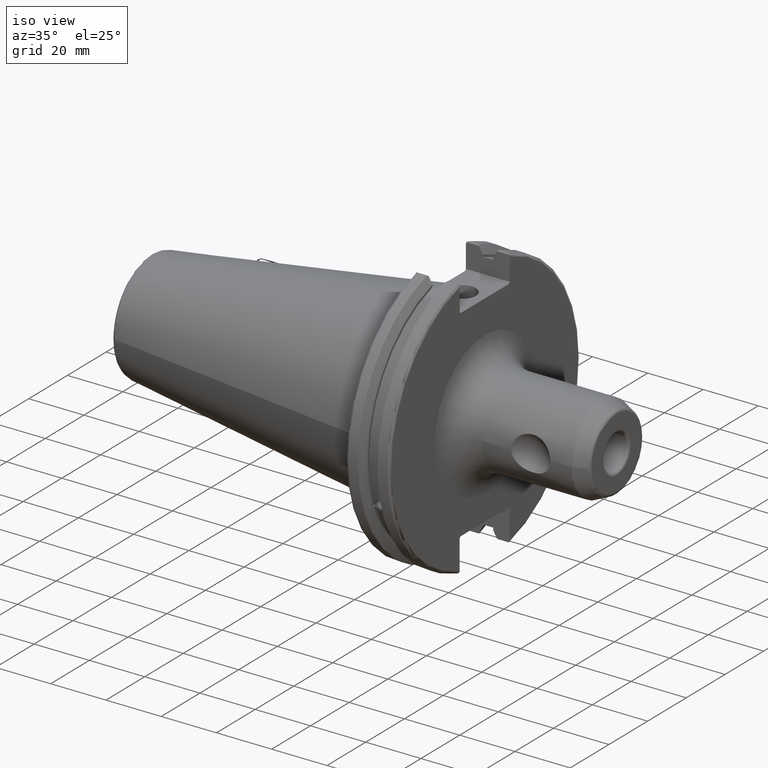
[diagram: clean part render]
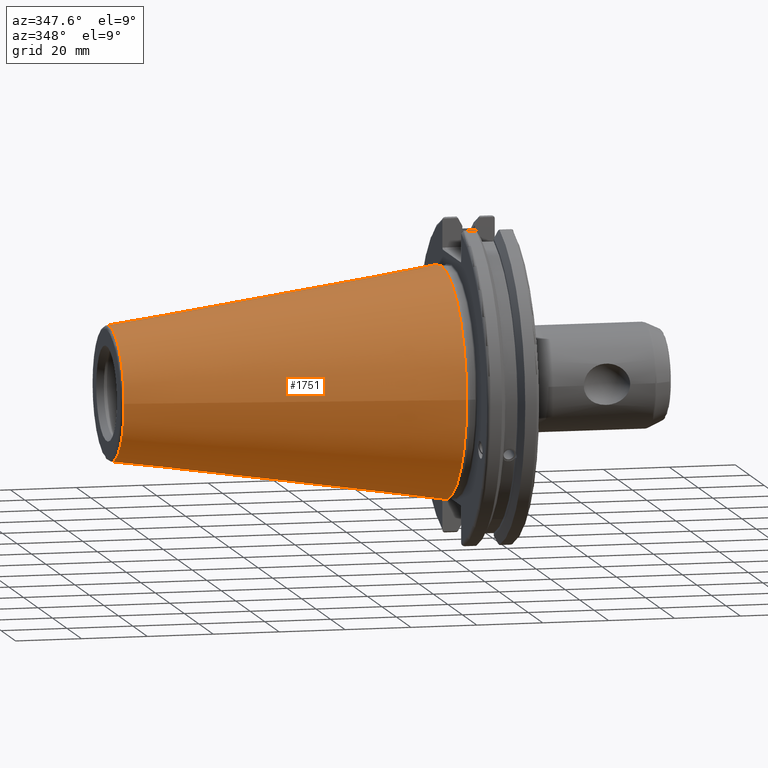
[diagram: tour spotlight — one face highlighted and labeled with its STEP entity id]
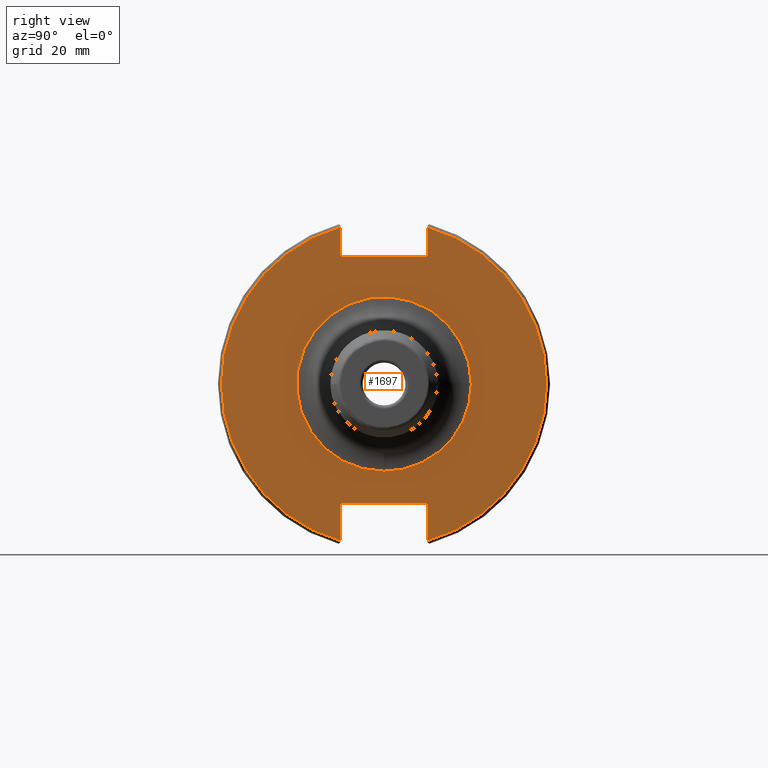
[diagram: tour spotlight — one face highlighted and labeled with its STEP entity id]
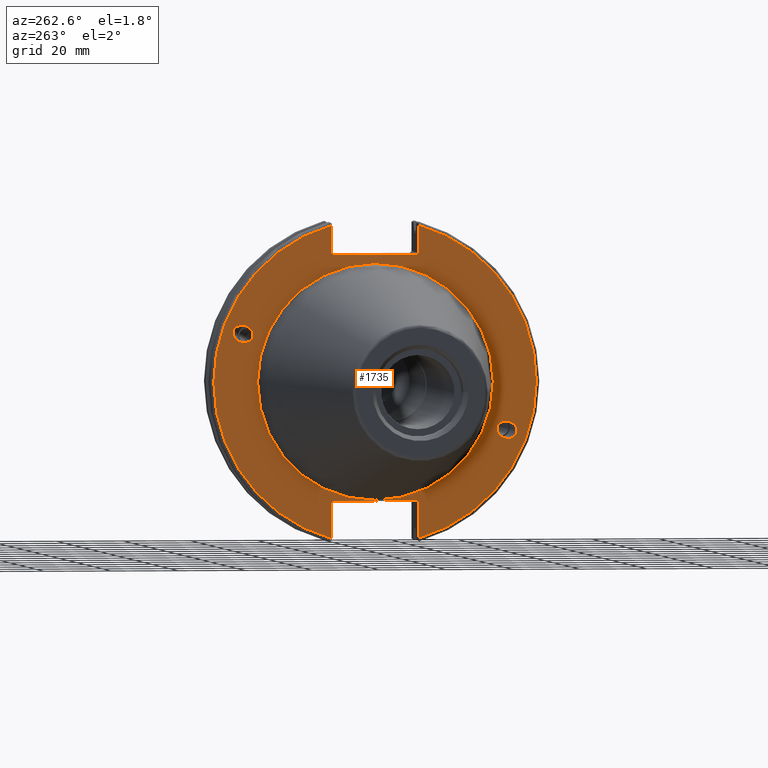
[diagram: tour spotlight — one face highlighted and labeled with its STEP entity id]
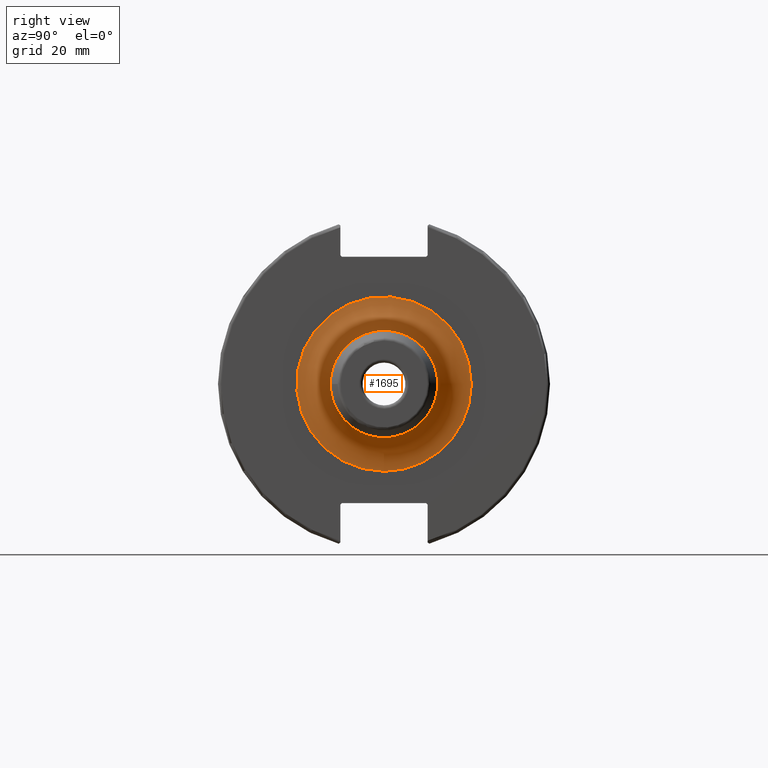
[diagram: tour spotlight — one face highlighted and labeled with its STEP entity id]
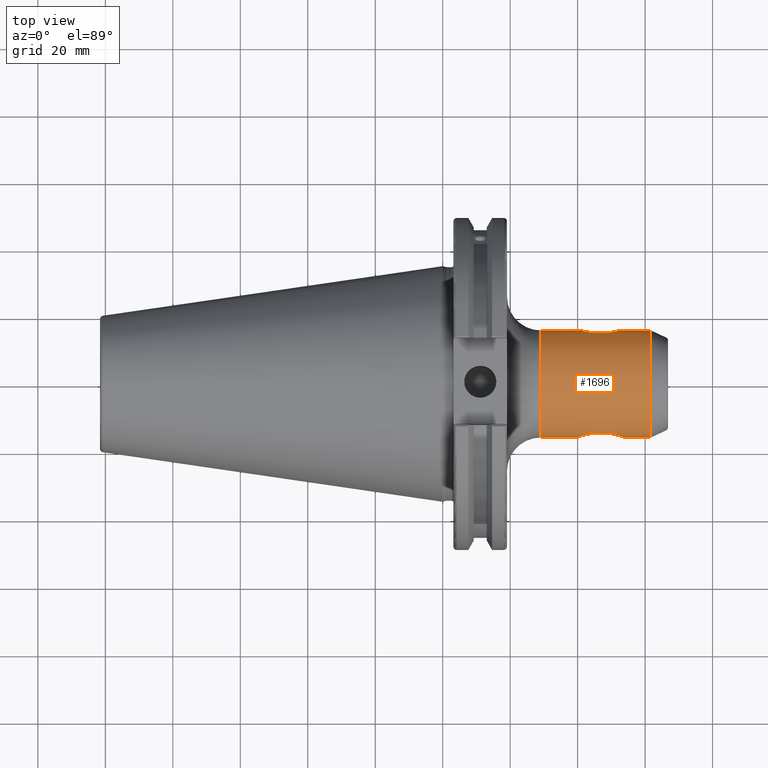
[diagram: tour spotlight — one face highlighted and labeled with its STEP entity id]
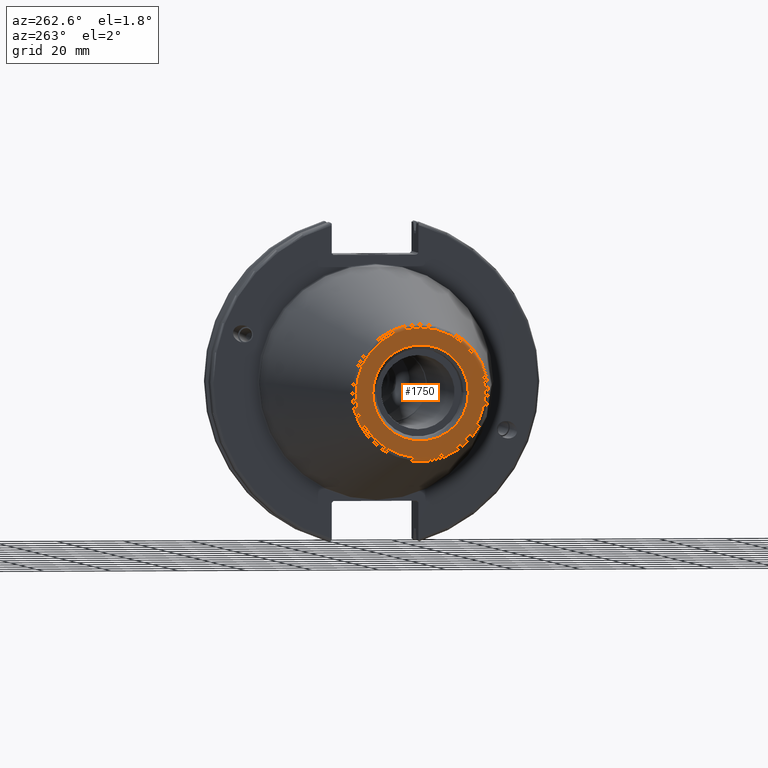
[diagram: tour spotlight — one face highlighted and labeled with its STEP entity id]
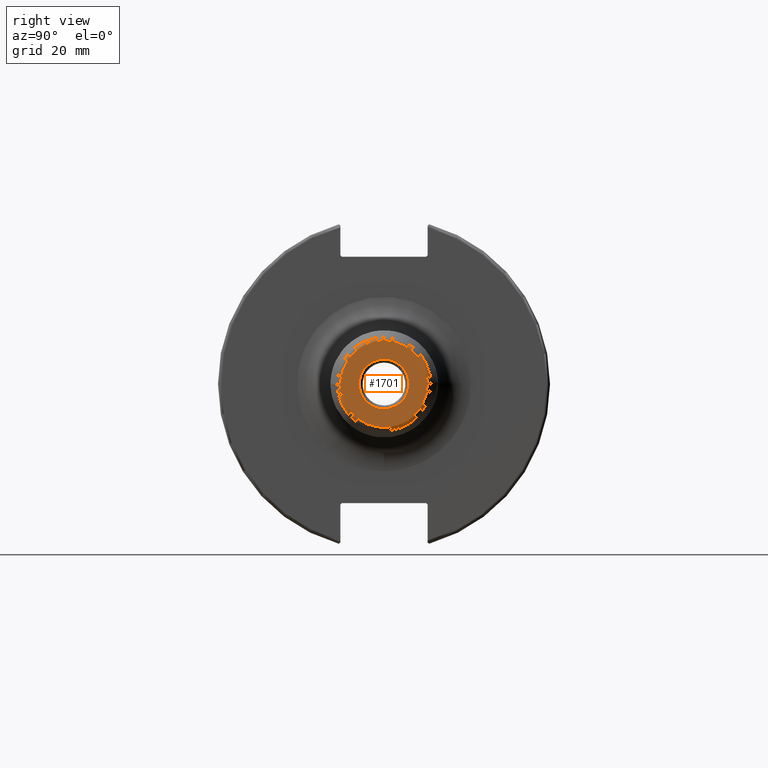
[diagram: tour spotlight — one face highlighted and labeled with its STEP entity id]
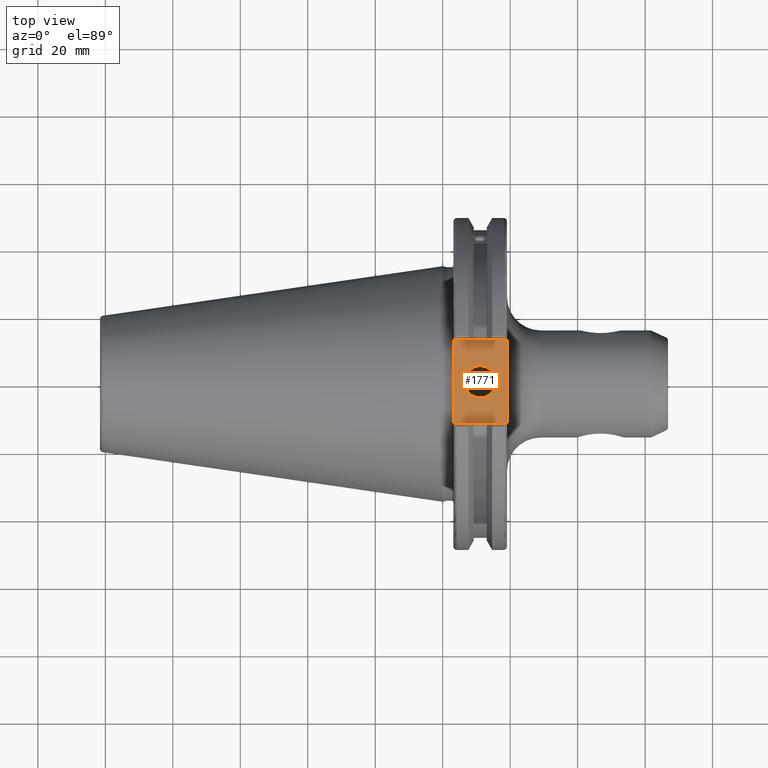
[diagram: tour spotlight — one face highlighted and labeled with its STEP entity id]
A machine part: a face-by-face anatomy tour. The part has 89 B-rep faces; the first image is the clean iso view, then the 8 largest visible faces are spotlighted one at a time (largest first), each with its STEP entity span.

Face 1 — auxiliary view, entity #1751. In plain terms, the highlighted conical surface has half-angle 8.297 deg.
Definition (entity closure, byte-faithful):
#109=CONICAL_SURFACE('',#1957,27.5166666666666,0.14481249823894);
#190=LINE('',#3566,#285);
#285=VECTOR('',#2400,27.5166666666666);
#392=CIRCLE('',#1948,20.233121911427);
#393=CIRCLE('',#1949,20.233121911427);
#397=CIRCLE('',#1953,20.233121911427);
#400=CIRCLE('',#1958,34.925);
#401=CIRCLE('',#1959,34.925);
#504=FACE_OUTER_BOUND('',#612,.T.);
#612=EDGE_LOOP('',(#1545,#1546,#1547,#1548,#1549,#1550,#1551));
#857=VERTEX_POINT('',#3545);
#858=VERTEX_POINT('',#3546);
#859=VERTEX_POINT('',#3548);
#864=VERTEX_POINT('',#3562);
#865=VERTEX_POINT('',#3563);
#1103=EDGE_CURVE('',#857,#858,#392,.T.);
#1104=EDGE_CURVE('',#858,#859,#393,.T.);
#1108=EDGE_CURVE('',#859,#857,#397,.T.);
#1111=EDGE_CURVE('',#864,#865,#400,.T.);
#1112=EDGE_CURVE('',#865,#864,#401,.T.);
#1113=EDGE_CURVE('',#865,#858,#190,.T.);
#1545=ORIENTED_EDGE('',*,*,#1111,.F.);
#1546=ORIENTED_EDGE('',*,*,#1112,.F.);
#1547=ORIENTED_EDGE('',*,*,#1113,.T.);
#1548=ORIENTED_EDGE('',*,*,#1103,.F.);
#1549=ORIENTED_EDGE('',*,*,#1108,.F.);
#1550=ORIENTED_EDGE('',*,*,#1104,.F.);
#1551=ORIENTED_EDGE('',*,*,#1113,.F.);
#1751=ADVANCED_FACE('',(#504),#109,.T.);
#1948=AXIS2_PLACEMENT_3D('',#3547,#2376,#2377);
#1949=AXIS2_PLACEMENT_3D('',#3549,#2378,#2379);
#1953=AXIS2_PLACEMENT_3D('',#3555,#2386,#2387);
#1957=AXIS2_PLACEMENT_3D('',#3561,#2394,#2395);
#1958=AXIS2_PLACEMENT_3D('',#3564,#2396,#2397);
#1959=AXIS2_PLACEMENT_3D('',#3565,#2398,#2399);
#2376=DIRECTION('center_axis',(-1.,0.,0.));
#2377=DIRECTION('ref_axis',(0.,-1.,3.06161699786838E-17));
#2378=DIRECTION('center_axis',(-1.,0.,0.));
#2379=DIRECTION('ref_axis',(0.,-1.,3.06161699786838E-17));
#2386=DIRECTION('center_axis',(-1.,0.,0.));
#2387=DIRECTION('ref_axis',(0.,-1.,3.06161699786838E-17));
#2394=DIRECTION('center_axis',(1.,0.,0.));
#2395=DIRECTION('ref_axis',(0.,1.,0.));
#2396=DIRECTION('center_axis',(1.,0.,0.));
#2397=DIRECTION('ref_axis',(0.,0.,-1.));
#2398=DIRECTION('center_axis',(1.,0.,0.));
#2399=DIRECTION('ref_axis',(0.,0.,-1.));
#2400=DIRECTION('',(-0.989532981063281,0.144306893071729,1.76724974695192E-17));
#3545=CARTESIAN_POINT('',(-100.744306893072,20.233121911427,-6.19460699639681E-15));
#3546=CARTESIAN_POINT('',(-100.744306893072,-20.233121911427,-2.47784279855872E-15));
#3547=CARTESIAN_POINT('Origin',(-100.744306893072,0.,-3.09730349819841E-15));
#3548=CARTESIAN_POINT('',(-100.744306893072,-2.47784279855872E-15,20.233121911427));
#3549=CARTESIAN_POINT('Origin',(-100.744306893072,0.,-3.09730349819841E-15));
#3555=CARTESIAN_POINT('Origin',(-100.744306893072,0.,-3.09730349819841E-15));
#3561=CARTESIAN_POINT('Origin',(-50.8,0.,0.));
#3562=CARTESIAN_POINT('',(0.,34.925,0.));
#3563=CARTESIAN_POINT('',(-8.88178419700125E-15,-34.925,-4.27707894602213E-15));
#3564=CARTESIAN_POINT('Origin',(0.,0.,0.));
#3565=CARTESIAN_POINT('Origin',(0.,0.,0.));
#3566=CARTESIAN_POINT('',(-50.8,-27.5166666666666,-3.3698197756538E-15));

Face 2 — right view, entity #1697. In plain terms, the highlighted planar face has unit normal (1, 0, 0).
Definition (entity closure, byte-faithful):
#45=FACE_BOUND('',#542,.T.);
#65=PLANE('',#1819);
#119=LINE('',#2680,#214);
#120=LINE('',#2682,#215);
#121=LINE('',#2684,#216);
#122=LINE('',#2686,#217);
#123=LINE('',#2688,#218);
#124=LINE('',#2692,#219);
#125=LINE('',#2694,#220);
#126=LINE('',#2696,#221);
#127=LINE('',#2698,#222);
#128=LINE('',#2699,#223);
#214=VECTOR('',#2051,10.);
#215=VECTOR('',#2052,10.);
#216=VECTOR('',#2053,10.);
#217=VECTOR('',#2054,10.);
#218=VECTOR('',#2055,10.);
#219=VECTOR('',#2058,10.);
#220=VECTOR('',#2059,10.);
#221=VECTOR('',#2060,10.);
#222=VECTOR('',#2061,10.);
#223=VECTOR('',#2062,10.);
#311=CIRCLE('',#1811,25.875);
#312=CIRCLE('',#1812,25.875);
#318=CIRCLE('',#1820,48.2125);
#319=CIRCLE('',#1821,48.2125);
#450=FACE_OUTER_BOUND('',#541,.T.);
#541=EDGE_LOOP('',(#1191,#1192,#1193,#1194,#1195,#1196,#1197,#1198,#1199,
#1200,#1201,#1202));
#542=EDGE_LOOP('',(#1203,#1204));
#701=VERTEX_POINT('',#2658);
#702=VERTEX_POINT('',#2660);
#707=VERTEX_POINT('',#2676);
#708=VERTEX_POINT('',#2677);
#709=VERTEX_POINT('',#2679);
#710=VERTEX_POINT('',#2681);
#711=VERTEX_POINT('',#2683);
#712=VERTEX_POINT('',#2685);
#713=VERTEX_POINT('',#2687);
#714=VERTEX_POINT('',#2689);
#715=VERTEX_POINT('',#2691);
#716=VERTEX_POINT('',#2693);
#717=VERTEX_POINT('',#2695);
#718=VERTEX_POINT('',#2697);
#895=EDGE_CURVE('',#701,#702,#311,.T.);
#896=EDGE_CURVE('',#702,#701,#312,.T.);
#904=EDGE_CURVE('',#707,#708,#318,.T.);
#905=EDGE_CURVE('',#707,#709,#119,.T.);
#906=EDGE_CURVE('',#710,#709,#120,.T.);
#907=EDGE_CURVE('',#710,#711,#121,.T.);
#908=EDGE_CURVE('',#712,#711,#122,.T.);
#909=EDGE_CURVE('',#712,#713,#123,.T.);
#910=EDGE_CURVE('',#714,#713,#319,.T.);
#911=EDGE_CURVE('',#714,#715,#124,.T.);
#912=EDGE_CURVE('',#716,#715,#125,.T.);
#913=EDGE_CURVE('',#716,#717,#126,.T.);
#914=EDGE_CURVE('',#718,#717,#127,.T.);
#915=EDGE_CURVE('',#718,#708,#128,.T.);
#1191=ORIENTED_EDGE('',*,*,#904,.F.);
#1192=ORIENTED_EDGE('',*,*,#905,.T.);
#1193=ORIENTED_EDGE('',*,*,#906,.F.);
#1194=ORIENTED_EDGE('',*,*,#907,.T.);
#1195=ORIENTED_EDGE('',*,*,#908,.F.);
#1196=ORIENTED_EDGE('',*,*,#909,.T.);
#1197=ORIENTED_EDGE('',*,*,#910,.F.);
#1198=ORIENTED_EDGE('',*,*,#911,.T.);
#1199=ORIENTED_EDGE('',*,*,#912,.F.);
#1200=ORIENTED_EDGE('',*,*,#913,.T.);
#1201=ORIENTED_EDGE('',*,*,#914,.F.);
#1202=ORIENTED_EDGE('',*,*,#915,.T.);
#1203=ORIENTED_EDGE('',*,*,#896,.F.);
#1204=ORIENTED_EDGE('',*,*,#895,.F.);
#1697=ADVANCED_FACE('',(#450,#45),#65,.T.);
#1811=AXIS2_PLACEMENT_3D('',#2661,#2029,#2030);
#1812=AXIS2_PLACEMENT_3D('',#2662,#2031,#2032);
#1819=AXIS2_PLACEMENT_3D('',#2675,#2047,#2048);
#1820=AXIS2_PLACEMENT_3D('',#2678,#2049,#2050);
#1821=AXIS2_PLACEMENT_3D('',#2690,#2056,#2057);
#2029=DIRECTION('center_axis',(1.,0.,0.));
#2030=DIRECTION('ref_axis',(0.,-1.,-1.22464679914735E-16));
#2031=DIRECTION('center_axis',(1.,0.,0.));
#2032=DIRECTION('ref_axis',(0.,-1.,-1.22464679914735E-16));
#2047=DIRECTION('center_axis',(1.,0.,0.));
#2048=DIRECTION('ref_axis',(0.,0.,-1.));
#2049=DIRECTION('center_axis',(-1.,0.,0.));
#2050=DIRECTION('ref_axis',(0.,1.,-6.12323399573677E-17));
#2051=DIRECTION('',(0.,0.,-1.));
#2052=DIRECTION('',(0.,0.707106781186549,0.707106781186546));
#2053=DIRECTION('',(0.,-1.,0.));
#2054=DIRECTION('',(0.,0.707106781186549,-0.707106781186546));
#2055=DIRECTION('',(0.,0.,1.));
#2056=DIRECTION('center_axis',(-1.,0.,0.));
#2057=DIRECTION('ref_axis',(0.,-1.,1.60812264967664E-16));
#2058=DIRECTION('',(0.,0.,1.));
#2059=DIRECTION('',(0.,-0.707106781186549,-0.707106781186546));
#2060=DIRECTION('',(0.,1.,0.));
#2061=DIRECTION('',(0.,-0.707106781186549,0.707106781186546));
#2062=DIRECTION('',(0.,0.,-1.));
#2658=CARTESIAN_POINT('',(19.05,-3.16877359279378E-15,-25.875));
#2660=CARTESIAN_POINT('',(19.05,25.875,6.33754718558755E-15));
#2661=CARTESIAN_POINT('Origin',(19.05,0.,0.));
#2662=CARTESIAN_POINT('Origin',(19.05,0.,0.));
#2675=CARTESIAN_POINT('Origin',(19.05,0.,0.));
#2676=CARTESIAN_POINT('',(19.05,12.95,46.4407434937254));
#2677=CARTESIAN_POINT('',(19.05,12.95,-46.4407434937254));
#2678=CARTESIAN_POINT('Origin',(19.05,0.,0.));
#2679=CARTESIAN_POINT('',(19.05,12.95,38.219));
#2680=CARTESIAN_POINT('',(19.05,12.95,18.8595));
#2681=CARTESIAN_POINT('',(19.05,12.45,37.719));
#2682=CARTESIAN_POINT('',(19.05,0.0327499999999836,25.30175));
#2683=CARTESIAN_POINT('',(19.05,-12.45,37.719));
#2684=CARTESIAN_POINT('',(19.05,0.,37.719));
#2685=CARTESIAN_POINT('',(19.05,-12.95,38.219));
#2686=CARTESIAN_POINT('',(19.05,-0.0327499999999817,25.30175));
#2687=CARTESIAN_POINT('',(19.05,-12.95,46.4407434937254));
#2688=CARTESIAN_POINT('',(19.05,-12.95,18.8595));
#2689=CARTESIAN_POINT('',(19.05,-12.95,-46.4407434937254));
#2690=CARTESIAN_POINT('Origin',(19.05,0.,0.));
#2691=CARTESIAN_POINT('',(19.05,-12.95,-35.806));
#2692=CARTESIAN_POINT('',(19.05,-12.95,-17.653));
#2693=CARTESIAN_POINT('',(19.05,-12.45,-35.306));
#2694=CARTESIAN_POINT('',(19.05,-0.635999999999989,-23.492));
#2695=CARTESIAN_POINT('',(19.05,12.45,-35.306));
#2696=CARTESIAN_POINT('',(19.05,-3.33066907387547E-15,-35.306));
#2697=CARTESIAN_POINT('',(19.05,12.95,-35.806));
#2698=CARTESIAN_POINT('',(19.05,0.635999999999982,-23.492));
#2699=CARTESIAN_POINT('',(19.05,12.95,-17.653));

Face 3 — auxiliary view, entity #1735. In plain terms, the highlighted planar face has unit normal (-1, 0, 0).
Definition (entity closure, byte-faithful):
#31=ELLIPSE('',#1867,3.05193647190364,2.5);
#32=ELLIPSE('',#1906,3.05193647190364,2.5);
#58=FACE_BOUND('',#593,.T.);
#59=FACE_BOUND('',#594,.T.);
#60=FACE_BOUND('',#595,.T.);
#75=PLANE('',#1924);
#163=LINE('',#3330,#258);
#164=LINE('',#3332,#259);
#165=LINE('',#3334,#260);
#166=LINE('',#3336,#261);
#167=LINE('',#3338,#262);
#168=LINE('',#3342,#263);
#169=LINE('',#3344,#264);
#170=LINE('',#3346,#265);
#171=LINE('',#3348,#266);
#172=LINE('',#3349,#267);
#258=VECTOR('',#2305,10.);
#259=VECTOR('',#2306,10.);
#260=VECTOR('',#2307,10.);
#261=VECTOR('',#2308,10.);
#262=VECTOR('',#2309,10.);
#263=VECTOR('',#2312,10.);
#264=VECTOR('',#2313,10.);
#265=VECTOR('',#2314,10.);
#266=VECTOR('',#2315,10.);
#267=VECTOR('',#2316,10.);
#379=CIRCLE('',#1920,35.125);
#380=CIRCLE('',#1921,35.125);
#383=CIRCLE('',#1925,48.2125);
#384=CIRCLE('',#1926,48.2125);
#488=FACE_OUTER_BOUND('',#592,.T.);
#592=EDGE_LOOP('',(#1431,#1432,#1433,#1434,#1435,#1436,#1437,#1438,#1439,
#1440,#1441,#1442));
#593=EDGE_LOOP('',(#1443));
#594=EDGE_LOOP('',(#1444));
#595=EDGE_LOOP('',(#1445,#1446));
#763=VERTEX_POINT('',#3021);
#806=VERTEX_POINT('',#3290);
#815=VERTEX_POINT('',#3317);
#816=VERTEX_POINT('',#3319);
#818=VERTEX_POINT('',#3326);
#819=VERTEX_POINT('',#3327);
#820=VERTEX_POINT('',#3329);
#821=VERTEX_POINT('',#3331);
#822=VERTEX_POINT('',#3333);
#823=VERTEX_POINT('',#3335);
#824=VERTEX_POINT('',#3337);
#825=VERTEX_POINT('',#3339);
#826=VERTEX_POINT('',#3341);
#827=VERTEX_POINT('',#3343);
#828=VERTEX_POINT('',#3345);
#829=VERTEX_POINT('',#3347);
#972=EDGE_CURVE('',#763,#763,#31,.T.);
#1028=EDGE_CURVE('',#806,#806,#32,.T.);
#1041=EDGE_CURVE('',#815,#816,#379,.T.);
#1042=EDGE_CURVE('',#816,#815,#380,.T.);
#1045=EDGE_CURVE('',#818,#819,#383,.T.);
#1046=EDGE_CURVE('',#818,#820,#163,.T.);
#1047=EDGE_CURVE('',#821,#820,#164,.T.);
#1048=EDGE_CURVE('',#821,#822,#165,.T.);
#1049=EDGE_CURVE('',#823,#822,#166,.T.);
#1050=EDGE_CURVE('',#823,#824,#167,.T.);
#1051=EDGE_CURVE('',#825,#824,#384,.T.);
#1052=EDGE_CURVE('',#825,#826,#168,.T.);
#1053=EDGE_CURVE('',#827,#826,#169,.T.);
#1054=EDGE_CURVE('',#827,#828,#170,.T.);
#1055=EDGE_CURVE('',#829,#828,#171,.T.);
#1056=EDGE_CURVE('',#829,#819,#172,.T.);
#1431=ORIENTED_EDGE('',*,*,#1045,.F.);
#1432=ORIENTED_EDGE('',*,*,#1046,.T.);
#1433=ORIENTED_EDGE('',*,*,#1047,.F.);
#1434=ORIENTED_EDGE('',*,*,#1048,.T.);
#1435=ORIENTED_EDGE('',*,*,#1049,.F.);
#1436=ORIENTED_EDGE('',*,*,#1050,.T.);
#1437=ORIENTED_EDGE('',*,*,#1051,.F.);
#1438=ORIENTED_EDGE('',*,*,#1052,.T.);
#1439=ORIENTED_EDGE('',*,*,#1053,.F.);
#1440=ORIENTED_EDGE('',*,*,#1054,.T.);
#1441=ORIENTED_EDGE('',*,*,#1055,.F.);
#1442=ORIENTED_EDGE('',*,*,#1056,.T.);
#1443=ORIENTED_EDGE('',*,*,#972,.T.);
#1444=ORIENTED_EDGE('',*,*,#1028,.T.);
#1445=ORIENTED_EDGE('',*,*,#1042,.F.);
#1446=ORIENTED_EDGE('',*,*,#1041,.F.);
#1735=ADVANCED_FACE('',(#488,#58,#59,#60),#75,.T.);
#1867=AXIS2_PLACEMENT_3D('',#3023,#2167,#2168);
#1906=AXIS2_PLACEMENT_3D('',#3292,#2261,#2262);
#1920=AXIS2_PLACEMENT_3D('',#3320,#2293,#2294);
#1921=AXIS2_PLACEMENT_3D('',#3321,#2295,#2296);
#1924=AXIS2_PLACEMENT_3D('',#3325,#2301,#2302);
#1925=AXIS2_PLACEMENT_3D('',#3328,#2303,#2304);
#1926=AXIS2_PLACEMENT_3D('',#3340,#2310,#2311);
#2167=DIRECTION('center_axis',(1.,0.,0.));
#2168=DIRECTION('ref_axis',(0.,-0.939692620785907,-0.342020143325671));
#2261=DIRECTION('center_axis',(1.,0.,0.));
#2262=DIRECTION('ref_axis',(0.,0.939692620785907,0.342020143325672));
#2293=DIRECTION('center_axis',(-1.,0.,0.));
#2294=DIRECTION('ref_axis',(0.,-1.,1.83697019872103E-16));
#2295=DIRECTION('center_axis',(-1.,0.,0.));
#2296=DIRECTION('ref_axis',(0.,-1.,1.83697019872103E-16));
#2301=DIRECTION('center_axis',(-1.,0.,0.));
#2302=DIRECTION('ref_axis',(0.,0.,1.));
#2303=DIRECTION('center_axis',(1.,0.,0.));
#2304=DIRECTION('ref_axis',(0.,-1.,1.60812264967664E-16));
#2305=DIRECTION('',(0.,0.,-1.));
#2306=DIRECTION('',(0.,-0.707106781186549,0.707106781186546));
#2307=DIRECTION('',(0.,1.,0.));
#2308=DIRECTION('',(0.,-0.707106781186549,-0.707106781186546));
#2309=DIRECTION('',(0.,0.,1.));
#2310=DIRECTION('center_axis',(1.,0.,0.));
#2311=DIRECTION('ref_axis',(0.,1.,-6.12323399573677E-17));
#2312=DIRECTION('',(0.,0.,1.));
#2313=DIRECTION('',(0.,0.707106781186549,-0.707106781186546));
#2314=DIRECTION('',(0.,-1.,0.));
#2315=DIRECTION('',(0.,0.707106781186549,0.707106781186546));
#2316=DIRECTION('',(0.,0.,-1.));
#3021=CARTESIAN_POINT('',(3.175,-36.5992078912529,-13.3210222701368));
#3023=CARTESIAN_POINT('Origin',(3.175,-39.4670900730082,-14.3648460196781));
#3290=CARTESIAN_POINT('',(3.175,36.5992078912529,13.3210222701368));
#3292=CARTESIAN_POINT('Origin',(3.175,39.4670900730082,14.3648460196781));
#3317=CARTESIAN_POINT('',(3.175,-4.30157188200508E-15,35.125));
#3319=CARTESIAN_POINT('',(3.175,35.125,-1.07539297050127E-14));
#3320=CARTESIAN_POINT('Origin',(3.175,0.,0.));
#3321=CARTESIAN_POINT('Origin',(3.175,0.,0.));
#3325=CARTESIAN_POINT('Origin',(3.175,49.2125,0.));
#3326=CARTESIAN_POINT('',(3.175,-12.95,46.4407434937254));
#3327=CARTESIAN_POINT('',(3.175,-12.95,-46.4407434937254));
#3328=CARTESIAN_POINT('Origin',(3.175,0.,0.));
#3329=CARTESIAN_POINT('',(3.175,-12.95,38.219));
#3330=CARTESIAN_POINT('',(3.175,-12.95,18.8595));
#3331=CARTESIAN_POINT('',(3.175,-12.45,37.719));
#3332=CARTESIAN_POINT('',(3.175,12.2703750000001,12.998625));
#3333=CARTESIAN_POINT('',(3.175,12.45,37.719));
#3334=CARTESIAN_POINT('',(3.175,24.60625,37.719));
#3335=CARTESIAN_POINT('',(3.175,12.95,38.219));
#3336=CARTESIAN_POINT('',(3.175,12.335875,37.604875));
#3337=CARTESIAN_POINT('',(3.175,12.95,46.4407434937254));
#3338=CARTESIAN_POINT('',(3.175,12.95,18.8595));
#3339=CARTESIAN_POINT('',(3.175,12.95,-46.4407434937254));
#3340=CARTESIAN_POINT('Origin',(3.175,0.,0.));
#3341=CARTESIAN_POINT('',(3.175,12.95,-35.806));
#3342=CARTESIAN_POINT('',(3.175,12.95,-17.653));
#3343=CARTESIAN_POINT('',(3.175,12.45,-35.306));
#3344=CARTESIAN_POINT('',(3.175,12.939125,-35.795125));
#3345=CARTESIAN_POINT('',(3.175,-12.45,-35.306));
#3346=CARTESIAN_POINT('',(3.175,24.60625,-35.306));
#3347=CARTESIAN_POINT('',(3.175,-12.95,-35.806));
#3348=CARTESIAN_POINT('',(3.175,11.6671250000001,-11.188875));
#3349=CARTESIAN_POINT('',(3.175,-12.95,-17.653));

Face 4 — right view, entity #1695. In plain terms, the highlighted toroidal blend (fillet) surface has major radius 25.875 mm and minor (blend) radius 10 mm.
Definition (entity closure, byte-faithful):
#33=TOROIDAL_SURFACE('',#1808,25.875,10.);
#309=CIRCLE('',#1809,15.875);
#310=CIRCLE('',#1810,10.);
#311=CIRCLE('',#1811,25.875);
#312=CIRCLE('',#1812,25.875);
#313=CIRCLE('',#1813,15.875);
#314=CIRCLE('',#1814,15.875);
#448=FACE_OUTER_BOUND('',#538,.T.);
#538=EDGE_LOOP('',(#1169,#1170,#1171,#1172,#1173,#1174,#1175));
#699=VERTEX_POINT('',#2655);
#700=VERTEX_POINT('',#2656);
#701=VERTEX_POINT('',#2658);
#702=VERTEX_POINT('',#2660);
#703=VERTEX_POINT('',#2663);
#893=EDGE_CURVE('',#699,#700,#309,.T.);
#894=EDGE_CURVE('',#700,#701,#310,.T.);
#895=EDGE_CURVE('',#701,#702,#311,.T.);
#896=EDGE_CURVE('',#702,#701,#312,.T.);
#897=EDGE_CURVE('',#700,#703,#313,.T.);
#898=EDGE_CURVE('',#703,#699,#314,.T.);
#1169=ORIENTED_EDGE('',*,*,#893,.T.);
#1170=ORIENTED_EDGE('',*,*,#894,.T.);
#1171=ORIENTED_EDGE('',*,*,#895,.T.);
#1172=ORIENTED_EDGE('',*,*,#896,.T.);
#1173=ORIENTED_EDGE('',*,*,#894,.F.);
#1174=ORIENTED_EDGE('',*,*,#897,.T.);
#1175=ORIENTED_EDGE('',*,*,#898,.T.);
#1695=ADVANCED_FACE('',(#448),#33,.F.);
#1808=AXIS2_PLACEMENT_3D('',#2654,#2023,#2024);
#1809=AXIS2_PLACEMENT_3D('',#2657,#2025,#2026);
#1810=AXIS2_PLACEMENT_3D('',#2659,#2027,#2028);
#1811=AXIS2_PLACEMENT_3D('',#2661,#2029,#2030);
#1812=AXIS2_PLACEMENT_3D('',#2662,#2031,#2032);
#1813=AXIS2_PLACEMENT_3D('',#2664,#2033,#2034);
#1814=AXIS2_PLACEMENT_3D('',#2665,#2035,#2036);
#2023=DIRECTION('center_axis',(-1.,0.,0.));
#2024=DIRECTION('ref_axis',(0.,0.,1.));
#2025=DIRECTION('center_axis',(-1.,0.,0.));
#2026=DIRECTION('ref_axis',(0.,-1.,-1.22464679914735E-16));
#2027=DIRECTION('center_axis',(0.,-1.,1.22464679914735E-16));
#2028=DIRECTION('ref_axis',(0.,-1.22464679914735E-16,-1.));
#2029=DIRECTION('center_axis',(1.,0.,0.));
#2030=DIRECTION('ref_axis',(0.,-1.,-1.22464679914735E-16));
#2031=DIRECTION('center_axis',(1.,0.,0.));
#2032=DIRECTION('ref_axis',(0.,-1.,-1.22464679914735E-16));
#2033=DIRECTION('center_axis',(-1.,0.,0.));
#2034=DIRECTION('ref_axis',(0.,-1.,-1.22464679914735E-16));
#2035=DIRECTION('center_axis',(-1.,0.,0.));
#2036=DIRECTION('ref_axis',(0.,-1.,-1.22464679914735E-16));
#2654=CARTESIAN_POINT('Origin',(29.05,0.,0.));
#2655=CARTESIAN_POINT('',(29.05,15.875,0.));
#2656=CARTESIAN_POINT('',(29.05,-1.94412679364642E-15,-15.875));
#2657=CARTESIAN_POINT('Origin',(29.05,0.,0.));
#2658=CARTESIAN_POINT('',(19.05,-3.16877359279378E-15,-25.875));
#2659=CARTESIAN_POINT('Origin',(29.05,-3.16877359279378E-15,-25.875));
#2660=CARTESIAN_POINT('',(19.05,25.875,6.33754718558755E-15));
#2661=CARTESIAN_POINT('Origin',(19.05,0.,0.));
#2662=CARTESIAN_POINT('Origin',(19.05,0.,0.));
#2663=CARTESIAN_POINT('',(29.05,-15.875,-1.94412679364642E-15));
#2664=CARTESIAN_POINT('Origin',(29.05,0.,0.));
#2665=CARTESIAN_POINT('Origin',(29.05,0.,0.));

Face 5 — top view, entity #1696. In plain terms, the highlighted cylindrical surface (bore or boss wall) has radius 15.875 mm, axis along (1, 0, 0).
Definition (entity closure, byte-faithful):
#44=FACE_BOUND('',#540,.T.);
#117=LINE('',#2672,#212);
#118=LINE('',#2673,#213);
#212=VECTOR('',#2043,15.875);
#213=VECTOR('',#2044,15.875);
#309=CIRCLE('',#1809,15.875);
#313=CIRCLE('',#1813,15.875);
#314=CIRCLE('',#1814,15.875);
#315=CIRCLE('',#1816,15.875);
#316=CIRCLE('',#1817,15.875);
#317=CIRCLE('',#1818,15.875);
#418=CYLINDRICAL_SURFACE('',#1815,15.875);
#449=FACE_OUTER_BOUND('',#539,.T.);
#539=EDGE_LOOP('',(#1176,#1177,#1178,#1179,#1180,#1181,#1182,#1183,#1184,
#1185,#1186,#1187,#1188));
#540=EDGE_LOOP('',(#1189,#1190));
#643=B_SPLINE_CURVE_WITH_KNOTS('',3,(#2510,#2511,#2512,#2513,#2514,#2515,
#2516,#2517,#2518,#2519,#2520,#2521),.UNSPECIFIED.,.F.,.F.,(4,2,2,2,2,4),
(0.,0.355478019128927,0.533217028693391,0.710956038257855,0.86521381872684,
1.01947159919583),.UNSPECIFIED.);
#644=B_SPLINE_CURVE_WITH_KNOTS('',3,(#2523,#2524,#2525,#2526,#2527,#2528,
#2529,#2530,#2531,#2532,#2533,#2534),.UNSPECIFIED.,.F.,.F.,(4,2,2,2,2,4),
(3.05841479758748,3.21267257805646,3.36693035852545,3.54466936808991,3.72240837765438,
4.0778863967833),.UNSPECIFIED.);
#645=B_SPLINE_CURVE_WITH_KNOTS('',3,(#2535,#2536,#2537,#2538,#2539,#2540,
#2541,#2542,#2543,#2544,#2545,#2546,#2547,#2548,#2549,#2550,#2551,#2552,
#2553,#2554,#2555,#2556),.UNSPECIFIED.,.F.,.F.,(4,2,2,2,2,2,2,2,2,2,4),
(1.01947159919583,1.17372937966481,1.3279871601338,1.50572616969826,1.68346517926272,
2.03894319839165,2.39442121752058,2.57216022708504,2.74989923664951,2.90415701711849,
3.05841479758748),.UNSPECIFIED.);
#648=B_SPLINE_CURVE_WITH_KNOTS('',3,(#2617,#2618,#2619,#2620,#2621,#2622,
#2623,#2624,#2625,#2626,#2627,#2628,#2629,#2630,#2631,#2632,#2633,#2634,
#2635,#2636,#2637,#2638,#2639,#2640,#2641,#2642),.UNSPECIFIED.,.F.,.F.,
(4,2,2,2,2,2,2,2,2,2,2,2,4),(0.,0.207543507115612,0.415087014231225,0.630832350246654,
0.846577686262083,1.06232302227751,1.27806835829294,1.48561186540855,1.69315537252417,
1.90069887963978,2.10824238675539,2.32398772277082,2.53973305878625),
 .UNSPECIFIED.);
#649=B_SPLINE_CURVE_WITH_KNOTS('',3,(#2643,#2644,#2645,#2646,#2647,#2648,
#2649,#2650,#2651,#2652),.UNSPECIFIED.,.F.,.F.,(4,2,2,2,4),(2.53973305878625,
2.75547839480168,2.97122373081711,3.17876723793272,3.38631074504834),
 .UNSPECIFIED.);
#688=VERTEX_POINT('',#2508);
#689=VERTEX_POINT('',#2509);
#690=VERTEX_POINT('',#2522);
#697=VERTEX_POINT('',#2614);
#698=VERTEX_POINT('',#2616);
#699=VERTEX_POINT('',#2655);
#700=VERTEX_POINT('',#2656);
#703=VERTEX_POINT('',#2663);
#704=VERTEX_POINT('',#2667);
#705=VERTEX_POINT('',#2668);
#706=VERTEX_POINT('',#2670);
#880=EDGE_CURVE('',#688,#689,#643,.T.);
#881=EDGE_CURVE('',#690,#688,#644,.T.);
#882=EDGE_CURVE('',#689,#690,#645,.T.);
#891=EDGE_CURVE('',#698,#697,#648,.T.);
#892=EDGE_CURVE('',#697,#698,#649,.T.);
#893=EDGE_CURVE('',#699,#700,#309,.T.);
#897=EDGE_CURVE('',#700,#703,#313,.T.);
#898=EDGE_CURVE('',#703,#699,#314,.T.);
#899=EDGE_CURVE('',#704,#705,#315,.T.);
#900=EDGE_CURVE('',#706,#704,#316,.T.);
#901=EDGE_CURVE('',#706,#690,#117,.T.);
#902=EDGE_CURVE('',#689,#703,#118,.T.);
#903=EDGE_CURVE('',#705,#706,#317,.T.);
#1176=ORIENTED_EDGE('',*,*,#899,.F.);
#1177=ORIENTED_EDGE('',*,*,#900,.F.);
#1178=ORIENTED_EDGE('',*,*,#901,.T.);
#1179=ORIENTED_EDGE('',*,*,#881,.T.);
#1180=ORIENTED_EDGE('',*,*,#880,.T.);
#1181=ORIENTED_EDGE('',*,*,#902,.T.);
#1182=ORIENTED_EDGE('',*,*,#897,.F.);
#1183=ORIENTED_EDGE('',*,*,#893,.F.);
#1184=ORIENTED_EDGE('',*,*,#898,.F.);
#1185=ORIENTED_EDGE('',*,*,#902,.F.);
#1186=ORIENTED_EDGE('',*,*,#882,.T.);
#1187=ORIENTED_EDGE('',*,*,#901,.F.);
#1188=ORIENTED_EDGE('',*,*,#903,.F.);
#1189=ORIENTED_EDGE('',*,*,#891,.T.);
#1190=ORIENTED_EDGE('',*,*,#892,.T.);
#1696=ADVANCED_FACE('',(#449,#44),#418,.T.);
#1809=AXIS2_PLACEMENT_3D('',#2657,#2025,#2026);
#1813=AXIS2_PLACEMENT_3D('',#2664,#2033,#2034);
#1814=AXIS2_PLACEMENT_3D('',#2665,#2035,#2036);
#1815=AXIS2_PLACEMENT_3D('',#2666,#2037,#2038);
#1816=AXIS2_PLACEMENT_3D('',#2669,#2039,#2040);
#1817=AXIS2_PLACEMENT_3D('',#2671,#2041,#2042);
#1818=AXIS2_PLACEMENT_3D('',#2674,#2045,#2046);
#2025=DIRECTION('center_axis',(-1.,0.,0.));
#2026=DIRECTION('ref_axis',(0.,-1.,-1.22464679914735E-16));
#2033=DIRECTION('center_axis',(-1.,0.,0.));
#2034=DIRECTION('ref_axis',(0.,-1.,-1.22464679914735E-16));
#2035=DIRECTION('center_axis',(-1.,0.,0.));
#2036=DIRECTION('ref_axis',(0.,-1.,-1.22464679914735E-16));
#2037=DIRECTION('center_axis',(1.,0.,0.));
#2038=DIRECTION('ref_axis',(0.,1.,0.));
#2039=DIRECTION('center_axis',(1.,0.,0.));
#2040=DIRECTION('ref_axis',(0.,-1.,1.83697019872103E-16));
#2041=DIRECTION('center_axis',(1.,0.,0.));
#2042=DIRECTION('ref_axis',(0.,-1.,1.83697019872103E-16));
#2043=DIRECTION('',(-1.,0.,0.));
#2044=DIRECTION('',(-1.,0.,0.));
#2045=DIRECTION('center_axis',(1.,0.,0.));
#2046=DIRECTION('ref_axis',(0.,-1.,1.83697019872103E-16));
#2508=CARTESIAN_POINT('',(46.8,-14.6155336721728,-6.19691862763929));
#2509=CARTESIAN_POINT('',(39.7601136372808,-15.875,-2.08228642144837E-15));
#2510=CARTESIAN_POINT('Ctrl Pts',(46.8,-14.6155336721728,-6.19691862763929));
#2511=CARTESIAN_POINT('Ctrl Pts',(45.6150732695702,-14.6155336721728,-6.19691862763929));
#2512=CARTESIAN_POINT('Ctrl Pts',(44.3721401786213,-14.7353988505044,-5.93367097035273));
#2513=CARTESIAN_POINT('Ctrl Pts',(42.7442443572467,-15.0260726769078,-5.12971484732487));
#2514=CARTESIAN_POINT('Ctrl Pts',(42.2393241129432,-15.139069529473,-4.79494049463211));
#2515=CARTESIAN_POINT('Ctrl Pts',(41.3479689579188,-15.3658771039299,-4.0090773888823));
#2516=CARTESIAN_POINT('Ctrl Pts',(40.9614667099785,-15.4793610664714,-3.55797074185429));
#2517=CARTESIAN_POINT('Ctrl Pts',(40.3801268308484,-15.6610688997875,-2.63400448865546));
#2518=CARTESIAN_POINT('Ctrl Pts',(40.1447157953839,-15.740534039926,-2.1295319548808));
#2519=CARTESIAN_POINT('Ctrl Pts',(39.834614384992,-15.8478731562006,-1.06969151523261));
#2520=CARTESIAN_POINT('Ctrl Pts',(39.7601136372808,-15.875,-0.514192601563286));
#2521=CARTESIAN_POINT('Ctrl Pts',(39.7601136372808,-15.875,-1.80411241501588E-15));
#2522=CARTESIAN_POINT('',(53.8398863627192,-15.875,-2.0128974824093E-15));
#2523=CARTESIAN_POINT('Ctrl Pts',(53.8398863627192,-15.875,-2.08166817117217E-15));
#2524=CARTESIAN_POINT('Ctrl Pts',(53.8398863627192,-15.875,-0.514192601563286));
#2525=CARTESIAN_POINT('Ctrl Pts',(53.765385615008,-15.8478731562006,-1.06969151523261));
#2526=CARTESIAN_POINT('Ctrl Pts',(53.455284204616,-15.740534039926,-2.12953195488079));
#2527=CARTESIAN_POINT('Ctrl Pts',(53.2198731691516,-15.6610688997875,-2.63400448865546));
#2528=CARTESIAN_POINT('Ctrl Pts',(52.6385332900215,-15.4793610664714,-3.55797074185429));
#2529=CARTESIAN_POINT('Ctrl Pts',(52.2520310420812,-15.3658771039299,-4.00907738888231));
#2530=CARTESIAN_POINT('Ctrl Pts',(51.3606758870568,-15.139069529473,-4.79494049463212));
#2531=CARTESIAN_POINT('Ctrl Pts',(50.8557556427533,-15.0260726769078,-5.12971484732487));
#2532=CARTESIAN_POINT('Ctrl Pts',(49.2278598213787,-14.7353988505044,-5.93367097035273));
#2533=CARTESIAN_POINT('Ctrl Pts',(47.9849267304298,-14.6155336721728,-6.19691862763929));
#2534=CARTESIAN_POINT('Ctrl Pts',(46.8,-14.6155336721728,-6.19691862763929));
#2535=CARTESIAN_POINT('Ctrl Pts',(39.7601136372808,-15.875,-1.80411241501588E-15));
#2536=CARTESIAN_POINT('Ctrl Pts',(39.7601136372808,-15.875,0.514192601563282));
#2537=CARTESIAN_POINT('Ctrl Pts',(39.834614384992,-15.8478731562006,1.0696915152326));
#2538=CARTESIAN_POINT('Ctrl Pts',(40.1447157953839,-15.740534039926,2.12953195488079));
#2539=CARTESIAN_POINT('Ctrl Pts',(40.3801268308484,-15.6610688997875,2.63400448865545));
#2540=CARTESIAN_POINT('Ctrl Pts',(40.9614667099785,-15.4793610664714,3.55797074185429));
#2541=CARTESIAN_POINT('Ctrl Pts',(41.3479689579188,-15.3658771039299,4.0090773888823));
#2542=CARTESIAN_POINT('Ctrl Pts',(42.2393241129432,-15.139069529473,4.79494049463212));
#2543=CARTESIAN_POINT('Ctrl Pts',(42.7442443572467,-15.0260726769078,5.12971484732487));
#2544=CARTESIAN_POINT('Ctrl Pts',(44.3721401786213,-14.7353988505044,5.93367097035273));
#2545=CARTESIAN_POINT('Ctrl Pts',(45.6150732695702,-14.6155336721728,6.19691862763929));
#2546=CARTESIAN_POINT('Ctrl Pts',(47.9849267304298,-14.6155336721728,6.19691862763929));
#2547=CARTESIAN_POINT('Ctrl Pts',(49.2278598213787,-14.7353988505044,5.93367097035273));
#2548=CARTESIAN_POINT('Ctrl Pts',(50.8557556427533,-15.0260726769078,5.12971484732487));
#2549=CARTESIAN_POINT('Ctrl Pts',(51.3606758870568,-15.139069529473,4.79494049463211));
#2550=CARTESIAN_POINT('Ctrl Pts',(52.2520310420812,-15.3658771039299,4.00907738888229));
#2551=CARTESIAN_POINT('Ctrl Pts',(52.6385332900215,-15.4793610664714,3.55797074185429));
#2552=CARTESIAN_POINT('Ctrl Pts',(53.2198731691516,-15.6610688997875,2.63400448865545));
#2553=CARTESIAN_POINT('Ctrl Pts',(53.455284204616,-15.740534039926,2.12953195488079));
#2554=CARTESIAN_POINT('Ctrl Pts',(53.765385615008,-15.8478731562006,1.0696915152326));
#2555=CARTESIAN_POINT('Ctrl Pts',(53.8398863627192,-15.875,0.514192601563282));
#2556=CARTESIAN_POINT('Ctrl Pts',(53.8398863627192,-15.875,-2.22044604925031E-15));
#2614=CARTESIAN_POINT('',(40.8,15.875,7.34788079488413E-16));
#2616=CARTESIAN_POINT('',(46.8,15.0186163196344,-5.14361631963446));
#2617=CARTESIAN_POINT('Ctrl Pts',(46.8,15.0186163196344,-5.14361631963446));
#2618=CARTESIAN_POINT('Ctrl Pts',(47.4918116903854,15.0186163196344,-5.14361631963446));
#2619=CARTESIAN_POINT('Ctrl Pts',(48.2365020852949,15.0578170948298,-5.03355240863755));
#2620=CARTESIAN_POINT('Ctrl Pts',(49.6372033931305,15.2046276753764,-4.57097446832628));
#2621=CARTESIAN_POINT('Ctrl Pts',(50.2934407888126,15.3103712690291,-4.21855586262023));
#2622=CARTESIAN_POINT('Ctrl Pts',(51.3927894697804,15.5219418895606,-3.35978557749273));
#2623=CARTESIAN_POINT('Ctrl Pts',(51.9070654196176,15.6433812251048,-2.78273456296778));
#2624=CARTESIAN_POINT('Ctrl Pts',(52.6113353086694,15.8214627352331,-1.46298028280465));
#2625=CARTESIAN_POINT('Ctrl Pts',(52.8,15.875,-0.719151120051431));
#2626=CARTESIAN_POINT('Ctrl Pts',(52.8,15.875,0.71915112005143));
#2627=CARTESIAN_POINT('Ctrl Pts',(52.6113353086694,15.8214627352331,1.46298028280465));
#2628=CARTESIAN_POINT('Ctrl Pts',(51.9070654196176,15.6433812251048,2.78273456296778));
#2629=CARTESIAN_POINT('Ctrl Pts',(51.3927894697804,15.5219418895606,3.35978557749273));
#2630=CARTESIAN_POINT('Ctrl Pts',(50.2934407888126,15.3103712690291,4.21855586262023));
#2631=CARTESIAN_POINT('Ctrl Pts',(49.6372033931305,15.2046276753764,4.57097446832628));
#2632=CARTESIAN_POINT('Ctrl Pts',(48.2365020852949,15.0578170948298,5.03355240863755));
#2633=CARTESIAN_POINT('Ctrl Pts',(47.4918116903854,15.0186163196344,5.14361631963445));
#2634=CARTESIAN_POINT('Ctrl Pts',(46.1081883096146,15.0186163196344,5.14361631963445));
#2635=CARTESIAN_POINT('Ctrl Pts',(45.3634979147051,15.0578170948298,5.03355240863755));
#2636=CARTESIAN_POINT('Ctrl Pts',(43.9627966068694,15.2046276753764,4.57097446832628));
#2637=CARTESIAN_POINT('Ctrl Pts',(43.3065592111874,15.3103712690291,4.21855586262023));
#2638=CARTESIAN_POINT('Ctrl Pts',(42.2072105302196,15.5219418895606,3.35978557749273));
#2639=CARTESIAN_POINT('Ctrl Pts',(41.6929345803824,15.6433812251048,2.78273456296778));
#2640=CARTESIAN_POINT('Ctrl Pts',(40.9886646913306,15.8214627352331,1.46298028280465));
#2641=CARTESIAN_POINT('Ctrl Pts',(40.8,15.875,0.719151120051432));
#2642=CARTESIAN_POINT('Ctrl Pts',(40.8,15.875,8.32667268468867E-16));
#2643=CARTESIAN_POINT('Ctrl Pts',(40.8,15.875,2.84494650060196E-15));
#2644=CARTESIAN_POINT('Ctrl Pts',(40.8,15.875,-0.719151120051428));
#2645=CARTESIAN_POINT('Ctrl Pts',(40.9886646913306,15.8214627352331,-1.46298028280465));
#2646=CARTESIAN_POINT('Ctrl Pts',(41.6929345803824,15.6433812251048,-2.78273456296778));
#2647=CARTESIAN_POINT('Ctrl Pts',(42.2072105302196,15.5219418895606,-3.35978557749273));
#2648=CARTESIAN_POINT('Ctrl Pts',(43.3065592111874,15.3103712690291,-4.21855586262023));
#2649=CARTESIAN_POINT('Ctrl Pts',(43.9627966068694,15.2046276753764,-4.57097446832627));
#2650=CARTESIAN_POINT('Ctrl Pts',(45.3634979147051,15.0578170948298,-5.03355240863755));
#2651=CARTESIAN_POINT('Ctrl Pts',(46.1081883096146,15.0186163196344,-5.14361631963445));
#2652=CARTESIAN_POINT('Ctrl Pts',(46.8,15.0186163196344,-5.14361631963445));
#2655=CARTESIAN_POINT('',(29.05,15.875,0.));
#2656=CARTESIAN_POINT('',(29.05,-1.94412679364642E-15,-15.875));
#2657=CARTESIAN_POINT('Origin',(29.05,0.,0.));
#2663=CARTESIAN_POINT('',(29.05,-15.875,-1.94412679364642E-15));
#2664=CARTESIAN_POINT('Origin',(29.05,0.,0.));
#2665=CARTESIAN_POINT('Origin',(29.05,0.,0.));
#2666=CARTESIAN_POINT('Origin',(40.3783980318949,0.,0.));
#2667=CARTESIAN_POINT('',(61.4851014011468,15.875,-9.72063396823212E-16));
#2668=CARTESIAN_POINT('',(61.4851014011468,-1.94412679364642E-15,15.875));
#2669=CARTESIAN_POINT('Origin',(61.4851014011468,0.,0.));
#2670=CARTESIAN_POINT('',(61.4851014011468,-15.875,-1.94412679364642E-15));
#2671=CARTESIAN_POINT('Origin',(61.4851014011468,0.,0.));
#2672=CARTESIAN_POINT('',(40.3783980318949,-15.875,-1.94412679364642E-15));
#2673=CARTESIAN_POINT('',(40.3783980318949,-15.875,-1.94412679364642E-15));
#2674=CARTESIAN_POINT('Origin',(61.4851014011468,0.,0.));

Face 6 — auxiliary view, entity #1750. In plain terms, the highlighted planar face has unit normal (-1, 0, 0).
Definition (entity closure, byte-faithful):
#61=FACE_BOUND('',#611,.T.);
#83=PLANE('',#1954);
#395=CIRCLE('',#1951,19.2435889303637);
#396=CIRCLE('',#1952,19.2435889303637);
#398=CIRCLE('',#1955,14.2875);
#399=CIRCLE('',#1956,14.2875);
#503=FACE_OUTER_BOUND('',#610,.T.);
#610=EDGE_LOOP('',(#1541,#1542));
#611=EDGE_LOOP('',(#1543,#1544));
#860=VERTEX_POINT('',#3550);
#861=VERTEX_POINT('',#3552);
#862=VERTEX_POINT('',#3557);
#863=VERTEX_POINT('',#3558);
#1106=EDGE_CURVE('',#860,#861,#395,.T.);
#1107=EDGE_CURVE('',#861,#860,#396,.T.);
#1109=EDGE_CURVE('',#862,#863,#398,.T.);
#1110=EDGE_CURVE('',#863,#862,#399,.T.);
#1541=ORIENTED_EDGE('',*,*,#1107,.F.);
#1542=ORIENTED_EDGE('',*,*,#1106,.F.);
#1543=ORIENTED_EDGE('',*,*,#1109,.T.);
#1544=ORIENTED_EDGE('',*,*,#1110,.T.);
#1750=ADVANCED_FACE('',(#503,#61),#83,.T.);
#1951=AXIS2_PLACEMENT_3D('',#3553,#2382,#2383);
#1952=AXIS2_PLACEMENT_3D('',#3554,#2384,#2385);
#1954=AXIS2_PLACEMENT_3D('',#3556,#2388,#2389);
#1955=AXIS2_PLACEMENT_3D('',#3559,#2390,#2391);
#1956=AXIS2_PLACEMENT_3D('',#3560,#2392,#2393);
#2382=DIRECTION('center_axis',(1.,0.,0.));
#2383=DIRECTION('ref_axis',(0.,-1.,1.83697019872103E-16));
#2384=DIRECTION('center_axis',(1.,0.,0.));
#2385=DIRECTION('ref_axis',(0.,-1.,1.83697019872103E-16));
#2388=DIRECTION('center_axis',(-1.,0.,0.));
#2389=DIRECTION('ref_axis',(0.,0.,1.));
#2390=DIRECTION('center_axis',(1.,0.,0.));
#2391=DIRECTION('ref_axis',(0.,0.,-1.));
#2392=DIRECTION('center_axis',(1.,0.,0.));
#2393=DIRECTION('ref_axis',(0.,0.,-1.));
#3550=CARTESIAN_POINT('',(-101.6,-2.35665995876774E-15,19.2435889303637));
#3552=CARTESIAN_POINT('',(-101.6,19.2435889303637,-1.17832997938387E-15));
#3553=CARTESIAN_POINT('Origin',(-101.6,0.,0.));
#3554=CARTESIAN_POINT('Origin',(-101.6,0.,0.));
#3556=CARTESIAN_POINT('Origin',(-101.6,20.1083333333333,0.));
#3557=CARTESIAN_POINT('',(-101.6,14.2875,0.));
#3558=CARTESIAN_POINT('',(-101.6,-14.2875,-1.74971411428178E-15));
#3559=CARTESIAN_POINT('Origin',(-101.6,0.,0.));
#3560=CARTESIAN_POINT('Origin',(-101.6,0.,0.));

Face 7 — right view, entity #1701. In plain terms, the highlighted planar face has unit normal (1, 0, 0).
Definition (entity closure, byte-faithful):
#46=FACE_BOUND('',#547,.T.);
#66=PLANE('',#1836);
#327=CIRCLE('',#1832,7.35);
#331=CIRCLE('',#1837,12.8629297391925);
#332=CIRCLE('',#1838,12.8629297391925);
#454=FACE_OUTER_BOUND('',#546,.T.);
#546=EDGE_LOOP('',(#1226,#1227));
#547=EDGE_LOOP('',(#1228));
#725=VERTEX_POINT('',#2717);
#728=VERTEX_POINT('',#2725);
#729=VERTEX_POINT('',#2726);
#924=EDGE_CURVE('',#725,#725,#327,.T.);
#928=EDGE_CURVE('',#728,#729,#331,.T.);
#929=EDGE_CURVE('',#729,#728,#332,.T.);
#1226=ORIENTED_EDGE('',*,*,#928,.F.);
#1227=ORIENTED_EDGE('',*,*,#929,.F.);
#1228=ORIENTED_EDGE('',*,*,#924,.F.);
#1701=ADVANCED_FACE('',(#454,#46),#66,.T.);
#1832=AXIS2_PLACEMENT_3D('',#2718,#2084,#2085);
#1836=AXIS2_PLACEMENT_3D('',#2724,#2092,#2093);
#1837=AXIS2_PLACEMENT_3D('',#2727,#2094,#2095);
#1838=AXIS2_PLACEMENT_3D('',#2728,#2096,#2097);
#2084=DIRECTION('center_axis',(1.,0.,0.));
#2085=DIRECTION('ref_axis',(0.,-1.22464679914735E-16,1.));
#2092=DIRECTION('center_axis',(1.,0.,0.));
#2093=DIRECTION('ref_axis',(0.,0.,-1.));
#2094=DIRECTION('center_axis',(-1.,0.,0.));
#2095=DIRECTION('ref_axis',(0.,-1.,1.83697019872103E-16));
#2096=DIRECTION('center_axis',(-1.,0.,0.));
#2097=DIRECTION('ref_axis',(0.,-1.,1.83697019872103E-16));
#2717=CARTESIAN_POINT('',(66.8,1.80023079474661E-15,-7.35));
#2718=CARTESIAN_POINT('Origin',(66.8,0.,0.));
#2724=CARTESIAN_POINT('Origin',(66.8,5.55111512312578E-16,0.));
#2725=CARTESIAN_POINT('',(66.8,12.8629297391925,-3.93813643318985E-15));
#2726=CARTESIAN_POINT('',(66.8,-1.57525457327594E-15,12.8629297391925));
#2727=CARTESIAN_POINT('Origin',(66.8,0.,0.));
#2728=CARTESIAN_POINT('Origin',(66.8,0.,0.));

Face 8 — top view, entity #1771. In plain terms, the highlighted planar face has unit normal (0, 0, 1).
Definition (entity closure, byte-faithful):
#62=FACE_BOUND('',#633,.T.);
#96=PLANE('',#1987);
#121=LINE('',#2684,#216);
#165=LINE('',#3334,#260);
#193=LINE('',#3573,#288);
#195=LINE('',#3576,#290);
#216=VECTOR('',#2053,10.);
#260=VECTOR('',#2307,10.);
#288=VECTOR('',#2411,10.);
#290=VECTOR('',#2415,10.);
#405=CIRCLE('',#1978,4.7625);
#406=CIRCLE('',#1979,4.7625);
#524=FACE_OUTER_BOUND('',#632,.T.);
#632=EDGE_LOOP('',(#1643,#1644,#1645,#1646));
#633=EDGE_LOOP('',(#1647,#1648));
#710=VERTEX_POINT('',#2681);
#711=VERTEX_POINT('',#2683);
#821=VERTEX_POINT('',#3331);
#822=VERTEX_POINT('',#3333);
#874=VERTEX_POINT('',#3614);
#875=VERTEX_POINT('',#3615);
#907=EDGE_CURVE('',#710,#711,#121,.T.);
#1048=EDGE_CURVE('',#821,#822,#165,.T.);
#1116=EDGE_CURVE('',#711,#821,#193,.T.);
#1118=EDGE_CURVE('',#822,#710,#195,.T.);
#1134=EDGE_CURVE('',#874,#875,#405,.T.);
#1135=EDGE_CURVE('',#875,#874,#406,.T.);
#1643=ORIENTED_EDGE('',*,*,#1116,.F.);
#1644=ORIENTED_EDGE('',*,*,#907,.F.);
#1645=ORIENTED_EDGE('',*,*,#1118,.F.);
#1646=ORIENTED_EDGE('',*,*,#1048,.F.);
#1647=ORIENTED_EDGE('',*,*,#1134,.T.);
#1648=ORIENTED_EDGE('',*,*,#1135,.T.);
#1771=ADVANCED_FACE('',(#524,#62),#96,.T.);
#1978=AXIS2_PLACEMENT_3D('',#3616,#2452,#2453);
#1979=AXIS2_PLACEMENT_3D('',#3617,#2454,#2455);
#1987=AXIS2_PLACEMENT_3D('',#3626,#2471,#2472);
#2053=DIRECTION('',(0.,-1.,0.));
#2307=DIRECTION('',(0.,1.,0.));
#2411=DIRECTION('',(-1.,1.31581988103722E-16,0.));
#2415=DIRECTION('',(1.,0.,0.));
#2452=DIRECTION('center_axis',(0.,0.,-1.));
#2453=DIRECTION('ref_axis',(1.,0.,0.));
#2454=DIRECTION('center_axis',(0.,0.,-1.));
#2455=DIRECTION('ref_axis',(1.,0.,0.));
#2471=DIRECTION('center_axis',(0.,0.,1.));
#2472=DIRECTION('ref_axis',(1.,0.,0.));
#2681=CARTESIAN_POINT('',(19.05,12.45,37.719));
#2683=CARTESIAN_POINT('',(19.05,-12.45,37.719));
#2684=CARTESIAN_POINT('',(19.05,0.,37.719));
#3331=CARTESIAN_POINT('',(3.175,-12.45,37.719));
#3333=CARTESIAN_POINT('',(3.175,12.45,37.719));
#3334=CARTESIAN_POINT('',(3.175,24.60625,37.719));
#3573=CARTESIAN_POINT('',(10.63125,-12.45,37.719));
#3576=CARTESIAN_POINT('',(19.06875,12.45,37.719));
#3614=CARTESIAN_POINT('',(15.8966,0.,37.719));
#3615=CARTESIAN_POINT('',(6.3716,-5.83238038093927E-16,37.719));
#3616=CARTESIAN_POINT('Origin',(11.1341,0.,37.719));
#3617=CARTESIAN_POINT('Origin',(11.1341,0.,37.719));
#3626=CARTESIAN_POINT('Origin',(18.0875,0.,37.719));